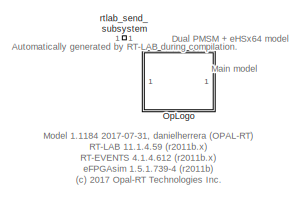
[diagram: root canvas - part 1/3, top left region]
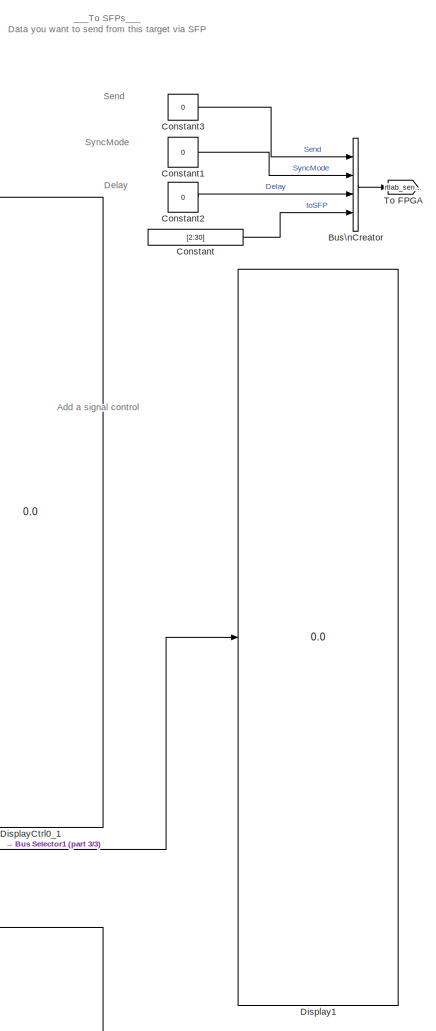
[diagram: root canvas - part 2/3, middle right region]
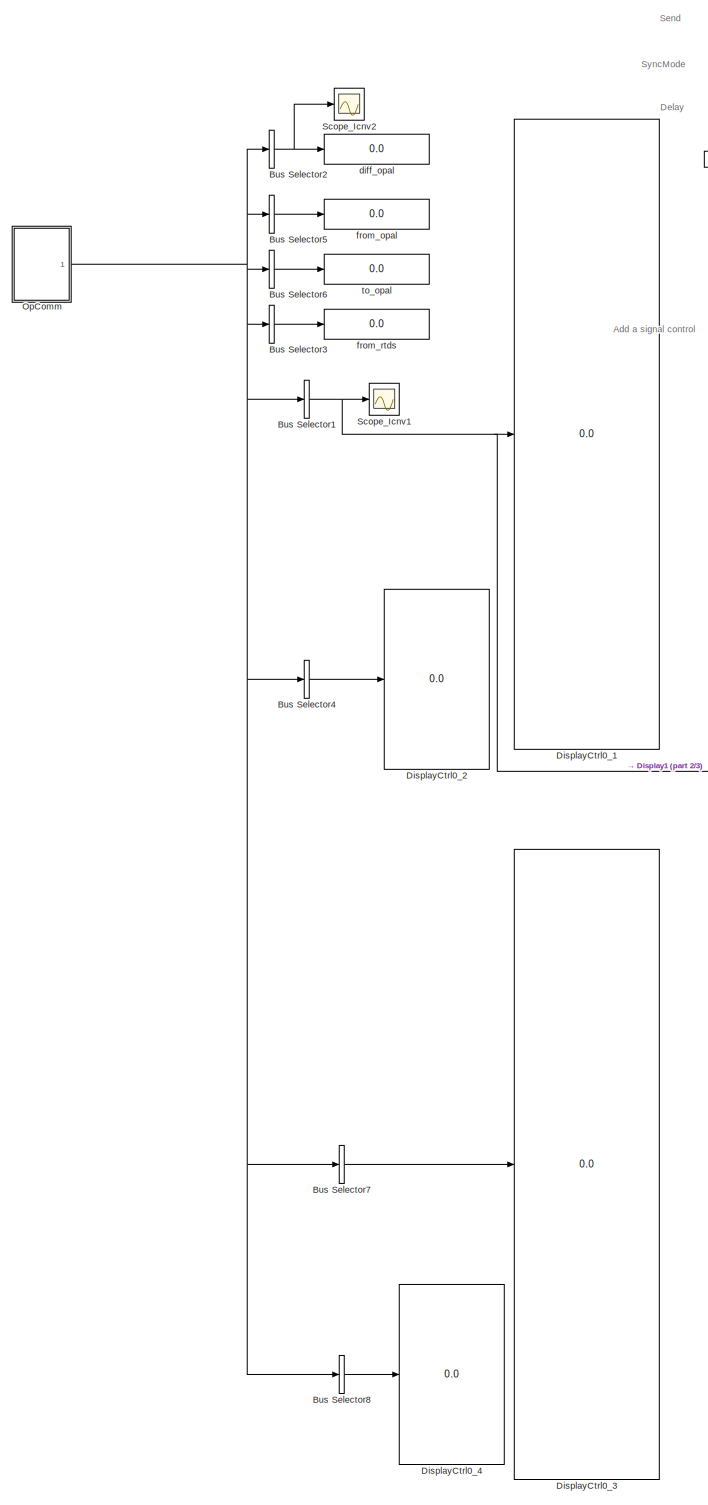
[diagram: root canvas - part 3/3, center side, full height]
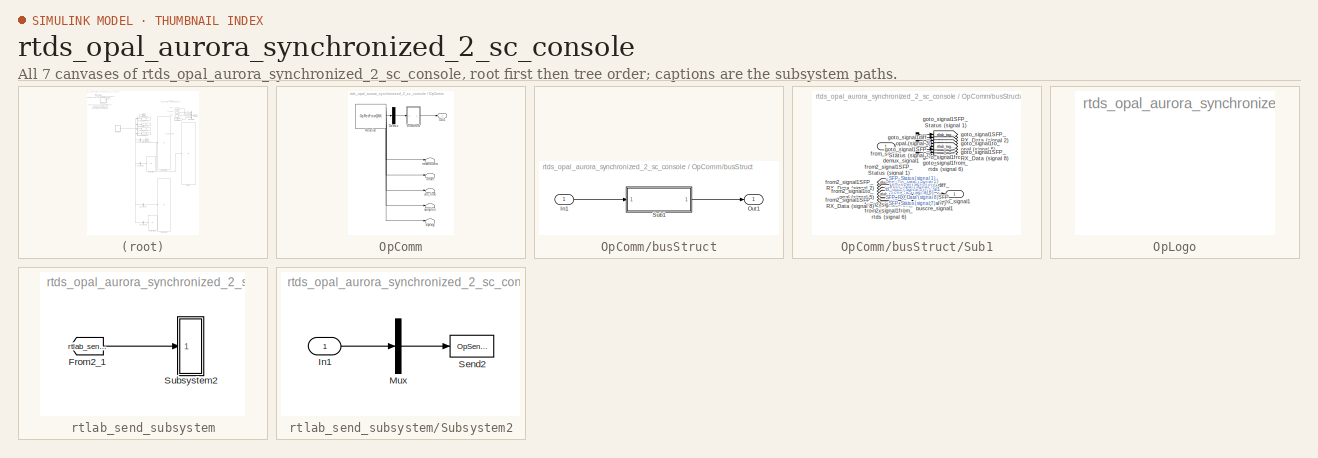
[diagram: thumbnail index - all 7 canvases of the model, root first then tree order]
MODEL rtds_opal_aurora_synchronized_2_sc_console
KIND model
CONFIG InitFcn = Ts=50e-6;
CONFIG PreLoadFcn = Ts=50e-6;
BLOCK [BusSelector] Bus Selector1
  OutputAsBus = on
  OutputSignals = SFP_RX_Data (signal 2)
  Ports = [1, 1]
  SID = 5
BLOCK [BusSelector] Bus Selector2
  OutputAsBus = on
  OutputSignals = diff_opal (signal 3)
  Ports = [1, 1]
  SID = 6
BLOCK [BusSelector] Bus Selector3
  OutputAsBus = on
  OutputSignals = from_rtds (signal 6)
  Ports = [1, 1]
  SID = 7
BLOCK [BusSelector] Bus Selector4
  OutputAsBus = on
  OutputSignals = SFP_Status (signal 1)
  Ports = [1, 1]
  SID = 8
BLOCK [BusSelector] Bus Selector5
  OutputAsBus = on
  OutputSignals = from_opal (signal 4)
  Ports = [1, 1]
  SID = 9
BLOCK [BusSelector] Bus Selector6
  OutputAsBus = on
  OutputSignals = to_opal (signal 5)
  Ports = [1, 1]
  SID = 10
BLOCK [BusSelector] Bus Selector7
  OutputAsBus = on
  OutputSignals = SFP_RX_Data (signal 8)
  Ports = [1, 1]
  SID = 266
BLOCK [BusSelector] Bus Selector8
  OutputAsBus = on
  OutputSignals = SFP_Status (signal 7)
  Ports = [1, 1]
  SID = 267
BLOCK [BusCreator] Bus\nCreator
  DisplayOption = bar
  InheritFromInputs = on
  Inputs = 4
  Ports = [4, 1]
  SID = 4
BLOCK [Constant] Constant
  SID = 11
  Value = [2:30]
BLOCK [Constant] Constant1
  OutDataTypeStr = double
  SID = 12
  Value = 0
BLOCK [Constant] Constant2
  OutDataTypeStr = double
  SID = 13
  Value = 0
BLOCK [Constant] Constant3
  OutDataTypeStr = double
  SID = 14
  Value = 0
BLOCK [Display] Display1
  Decimation = 1
  Ports = [1]
  SID = 15
BLOCK [Display] DisplayCtrl0_1
  Decimation = 1
  Format = long
  Ports = [1]
  SID = 16
BLOCK [Display] DisplayCtrl0_2
  Decimation = 1
  Ports = [1]
  SID = 17
BLOCK [Display] DisplayCtrl0_3
  Decimation = 1
  Format = long
  Ports = [1]
  SID = 264
BLOCK [Display] DisplayCtrl0_4
  Decimation = 1
  Ports = [1]
  SID = 265
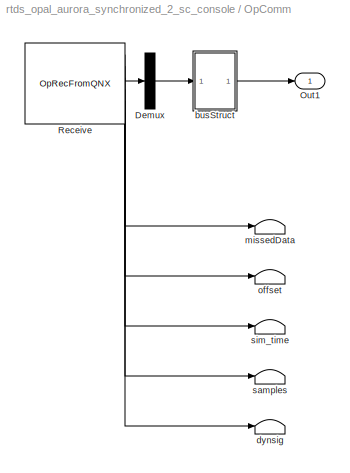
BLOCK [SubSystem] OpComm
  Ports = [0, 1]
  RequestExecContextInheritance = off
  SID = 313
BLOCK [Demux] OpComm/Demux
  Outputs = [78]
  Ports = [1, 1]
  SID = 314
BLOCK [Outport] OpComm/Out1
  IconDisplay = Port number
  SID = 345
BLOCK [Reference] OpComm/Receive  REF=opal_lib/Communication/OpRecFromQNX
  Acqu_Group = 1
  Data_Width = 78
  Interpolation = on
  Node_num = 1
  Ports = [0, 6]
  SID = 315
  SourceBlock = opal_lib/Communication/OpRecFromQNX
  SourceType = OPAL Receive Icon
  Synchronization = on
  Threshold = 1.0
  modelname = rtds_opal_aurora_synchronized.mdl
  sampletime = 5e-05
BLOCK [SubSystem] OpComm/busStruct
  Ports = [1, 1]
  RequestExecContextInheritance = off
  SID = 316
BLOCK [Inport] OpComm/busStruct/In1
  IconDisplay = Port number
  SID = 317
BLOCK [Outport] OpComm/busStruct/Out1
  IconDisplay = Port number
  SID = 339
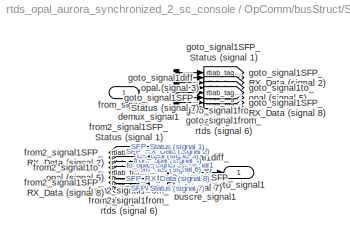
BLOCK [SubSystem] OpComm/busStruct/Sub1
  Ports = [1, 1]
  RequestExecContextInheritance = off
  SID = 318
BLOCK [BusCreator] OpComm/busStruct/Sub1/buscre_signal1
  InheritFromInputs = on
  Inputs = 8
  Ports = [8, 1]
  SID = 320
BLOCK [Demux] OpComm/busStruct/Sub1/demux_signal1
  Outputs = [5  32   1   1   1   1   5  32]
  Ports = [1, 8]
  SID = 321
BLOCK [From] OpComm/busStruct/Sub1/from2_signal1SFP_RX_Data (signal 2)
  GotoTag = rtlab_tag_2
  SID = 322
BLOCK [From] OpComm/busStruct/Sub1/from2_signal1SFP_RX_Data (signal 8)
  GotoTag = rtlab_tag_8
  SID = 323
BLOCK [From] OpComm/busStruct/Sub1/from2_signal1SFP_Status (signal 1)
  GotoTag = rtlab_tag_1
  SID = 324
BLOCK [From] OpComm/busStruct/Sub1/from2_signal1SFP_Status (signal 7)
  GotoTag = rtlab_tag_7
  SID = 325
BLOCK [From] OpComm/busStruct/Sub1/from2_signal1diff_opal (signal 3)
  GotoTag = rtlab_tag_3
  SID = 326
BLOCK [From] OpComm/busStruct/Sub1/from2_signal1from_opal (signal 4)
  GotoTag = rtlab_tag_4
  SID = 327
BLOCK [From] OpComm/busStruct/Sub1/from2_signal1from_rtds (signal 6)
  GotoTag = rtlab_tag_6
  SID = 328
BLOCK [From] OpComm/busStruct/Sub1/from2_signal1to_opal (signal 5)
  GotoTag = rtlab_tag_5
  SID = 329
BLOCK [Inport] OpComm/busStruct/Sub1/from_signal1
  IconDisplay = Port number
  SID = 319
BLOCK [Outport] OpComm/busStruct/Sub1/goto_signal1
  IconDisplay = Port number
  SID = 338
BLOCK [Goto] OpComm/busStruct/Sub1/goto_signal1SFP_RX_Data (signal 2)
  GotoTag = rtlab_tag_2
  SID = 330
BLOCK [Goto] OpComm/busStruct/Sub1/goto_signal1SFP_RX_Data (signal 8)
  GotoTag = rtlab_tag_8
  SID = 331
BLOCK [Goto] OpComm/busStruct/Sub1/goto_signal1SFP_Status (signal 1)
  GotoTag = rtlab_tag_1
  SID = 332
BLOCK [Goto] OpComm/busStruct/Sub1/goto_signal1SFP_Status (signal 7)
  GotoTag = rtlab_tag_7
  SID = 333
BLOCK [Goto] OpComm/busStruct/Sub1/goto_signal1diff_opal (signal 3)
  GotoTag = rtlab_tag_3
  SID = 334
BLOCK [Goto] OpComm/busStruct/Sub1/goto_signal1from_opal (signal 4)
  GotoTag = rtlab_tag_4
  SID = 335
BLOCK [Goto] OpComm/busStruct/Sub1/goto_signal1from_rtds (signal 6)
  GotoTag = rtlab_tag_6
  SID = 336
BLOCK [Goto] OpComm/busStruct/Sub1/goto_signal1to_opal (signal 5)
  GotoTag = rtlab_tag_5
  SID = 337
BLOCK [Terminator] OpComm/dynsig
  SID = 340
BLOCK [Terminator] OpComm/missedData
  SID = 341
BLOCK [Terminator] OpComm/offset
  SID = 342
BLOCK [Terminator] OpComm/samples
  SID = 343
BLOCK [Terminator] OpComm/sim_time
  SID = 344
BLOCK [SubSystem] OpLogo
  Ports = []
  RequestExecContextInheritance = off
  SID = 19
BLOCK [Scope] Scope_Icnv1
  Floating = off
  NumInputPorts = 1
  Ports = [1]
  SID = 20
  ScopeSpecificationString = Simulink.scopes.TimeScopeBlockCfg('CurrentConfiguration', extmgr.ConfigurationSet(extmgr.Configuration('Core','General UI',true),extmgr.Configuration('Core','Source UI',true),extmgr.Configuration('Sources','WiredSimulink',true,'DataLoggingVariableName','ScopeData1','DataLoggingLimitDataPoints',true,'DataLoggingSaveFormat','Array','DataLoggingDecimation','1','DataLoggingDecimateData',true),extmgr.C...<+1639ch>
BLOCK [Scope] Scope_Icnv2
  Floating = off
  NumInputPorts = 1
  Ports = [1]
  SID = 21
  ScopeSpecificationString = Simulink.scopes.TimeScopeBlockCfg('CurrentConfiguration', extmgr.ConfigurationSet(extmgr.Configuration('Core','General UI',true),extmgr.Configuration('Core','Source UI',true),extmgr.Configuration('Sources','WiredSimulink',true,'DataLoggingVariableName','ScopeData1','DataLoggingLimitDataPoints',true,'DataLoggingSaveFormat','Array','DataLoggingDecimation','1','DataLoggingDecimateData',true),extmgr.C...<+1639ch>
BLOCK [Goto] To FPGA
  GotoTag = rtlab_send_1
  SID = 352
  TagVisibility = global
BLOCK [Display] diff_opal
  Decimation = 1
  Format = long
  Ports = [1]
  SID = 22
BLOCK [Display] from_opal
  Decimation = 1
  Format = long
  Ports = [1]
  SID = 23
BLOCK [Display] from_rtds
  Decimation = 1
  Format = long
  Ports = [1]
  SID = 24
BLOCK [SubSystem] rtlab_send_subsystem
  Ports = []
  Priority = -100
  RequestExecContextInheritance = off
  SID = 346
BLOCK [From] rtlab_send_subsystem/From2_1
  GotoTag = rtlab_send_1
  SID = 350
  TagVisibility = global
BLOCK [SubSystem] rtlab_send_subsystem/Subsystem2
  Ports = [1]
  RequestExecContextInheritance = off
  SID = 347
BLOCK [Inport] rtlab_send_subsystem/Subsystem2/In1
  IconDisplay = Port number
  PortDimensions = 32
  SID = 351
BLOCK [Mux] rtlab_send_subsystem/Subsystem2/Mux
  Inputs = 1
  Ports = [1, 1]
  SID = 348
BLOCK [Reference] rtlab_send_subsystem/Subsystem2/Send2  REF=opal_lib/Communication/OpSendPar\nToQNX
  Node_num = 1
  Ports = [1]
  SID = 349
  SourceBlock = opal_lib/Communication/OpSendPar\nToQNX
  SourceType = OPAL Send Icon
  modelname = rtds_opal_aurora_synchronized
BLOCK [Display] to_opal
  Decimation = 1
  Format = long
  Ports = [1]
  SID = 25
ANNOTATION (root): Add a signal control
ANNOTATION (root): Automatically generated by RT-LAB during compilation.
ANNOTATION (root): Delay
ANNOTATION (root): Dual PMSM + eHSx64 model
ANNOTATION (root): Main model
ANNOTATION (root): Model 1.1184 2017-07-31, danielherrera (OPAL-RT)\nRT-LAB 11.1.4.59 (r2011b.x)\nRT-EVENTS 4.1.4.612 (r2011b.x)\neFPGAsim 1.5.1.739-4 (r2011b)\n(c) 2017 Opal-RT Technologies Inc.
ANNOTATION (root): Send
ANNOTATION (root): SyncMode
ANNOTATION (root): ___To SFPs___\nData you want to send from this target via SFP
NET Bus Selector1:1 -> Display1:1, DisplayCtrl0_1:1, Scope_Icnv1:1
NET Bus Selector2:1 -> Scope_Icnv2:1, diff_opal:1
LINE Bus Selector3:1 -> from_rtds:1
LINE Bus Selector4:1 -> DisplayCtrl0_2:1
LINE Bus Selector5:1 -> from_opal:1
LINE Bus Selector6:1 -> to_opal:1
LINE Bus Selector7:1 -> DisplayCtrl0_3:1
LINE Bus Selector8:1 -> DisplayCtrl0_4:1
LINE Bus\nCreator:1 -> To FPGA:1
LINE Constant1:1 -> Bus\nCreator:2
LINE Constant2:1 -> Bus\nCreator:3
LINE Constant3:1 -> Bus\nCreator:1
LINE Constant:1 -> Bus\nCreator:4
LINE OpComm/Demux:1 -> OpComm/busStruct:1
LINE OpComm/Receive:1 -> OpComm/Demux:1
LINE OpComm/Receive:2 -> OpComm/missedData:1
LINE OpComm/Receive:3 -> OpComm/offset:1
LINE OpComm/Receive:4 -> OpComm/sim_time:1
LINE OpComm/Receive:5 -> OpComm/samples:1
LINE OpComm/Receive:6 -> OpComm/dynsig:1
LINE OpComm/busStruct/In1:1 -> OpComm/busStruct/Sub1:1
LINE OpComm/busStruct/Sub1/buscre_signal1:1 -> OpComm/busStruct/Sub1/goto_signal1:1
LINE OpComm/busStruct/Sub1/demux_signal1:1 -> OpComm/busStruct/Sub1/goto_signal1SFP_Status (signal 1):1
LINE OpComm/busStruct/Sub1/demux_signal1:2 -> OpComm/busStruct/Sub1/goto_signal1SFP_RX_Data (signal 2):1
LINE OpComm/busStruct/Sub1/demux_signal1:3 -> OpComm/busStruct/Sub1/goto_signal1diff_opal (signal 3):1
LINE OpComm/busStruct/Sub1/demux_signal1:4 -> OpComm/busStruct/Sub1/goto_signal1from_opal (signal 4):1
LINE OpComm/busStruct/Sub1/demux_signal1:5 -> OpComm/busStruct/Sub1/goto_signal1to_opal (signal 5):1
LINE OpComm/busStruct/Sub1/demux_signal1:6 -> OpComm/busStruct/Sub1/goto_signal1from_rtds (signal 6):1
LINE OpComm/busStruct/Sub1/demux_signal1:7 -> OpComm/busStruct/Sub1/goto_signal1SFP_Status (signal 7):1
LINE OpComm/busStruct/Sub1/demux_signal1:8 -> OpComm/busStruct/Sub1/goto_signal1SFP_RX_Data (signal 8):1
LINE OpComm/busStruct/Sub1/from2_signal1SFP_RX_Data (signal 2):1 -> OpComm/busStruct/Sub1/buscre_signal1:2
LINE OpComm/busStruct/Sub1/from2_signal1SFP_RX_Data (signal 8):1 -> OpComm/busStruct/Sub1/buscre_signal1:8
LINE OpComm/busStruct/Sub1/from2_signal1SFP_Status (signal 1):1 -> OpComm/busStruct/Sub1/buscre_signal1:1
LINE OpComm/busStruct/Sub1/from2_signal1SFP_Status (signal 7):1 -> OpComm/busStruct/Sub1/buscre_signal1:7
LINE OpComm/busStruct/Sub1/from2_signal1diff_opal (signal 3):1 -> OpComm/busStruct/Sub1/buscre_signal1:3
LINE OpComm/busStruct/Sub1/from2_signal1from_opal (signal 4):1 -> OpComm/busStruct/Sub1/buscre_signal1:4
LINE OpComm/busStruct/Sub1/from2_signal1from_rtds (signal 6):1 -> OpComm/busStruct/Sub1/buscre_signal1:6
LINE OpComm/busStruct/Sub1/from2_signal1to_opal (signal 5):1 -> OpComm/busStruct/Sub1/buscre_signal1:5
LINE OpComm/busStruct/Sub1/from_signal1:1 -> OpComm/busStruct/Sub1/demux_signal1:1
LINE OpComm/busStruct/Sub1:1 -> OpComm/busStruct/Out1:1
LINE OpComm/busStruct:1 -> OpComm/Out1:1
NET OpComm:1 -> Bus Selector1:1, Bus Selector2:1, Bus Selector3:1, Bus Selector4:1, Bus Selector5:1, Bus Selector6:1, Bus Selector7:1, Bus Selector8:1
LINE rtlab_send_subsystem/From2_1:1 -> rtlab_send_subsystem/Subsystem2:1
LINE rtlab_send_subsystem/Subsystem2/In1:1 -> rtlab_send_subsystem/Subsystem2/Mux:1
LINE rtlab_send_subsystem/Subsystem2/Mux:1 -> rtlab_send_subsystem/Subsystem2/Send2:1
note: NET lines group one-source signal fan-out (src -> all destinations, sorted); 1:1 wires keep LINE
